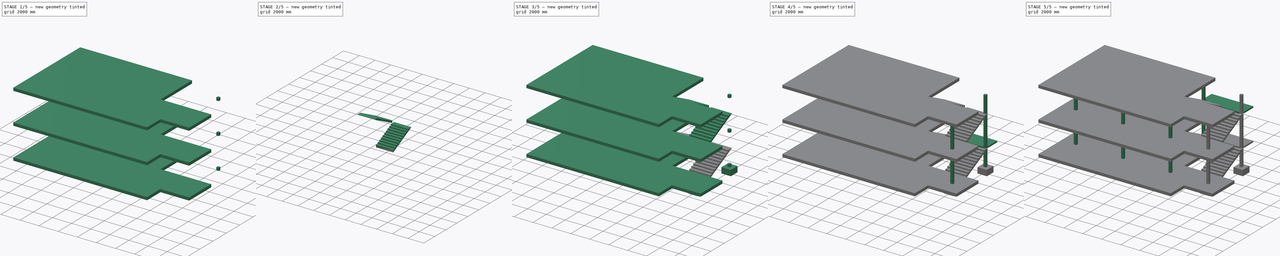
[diagram: build sequence overview — one tinted view per stage of 5, left to right]
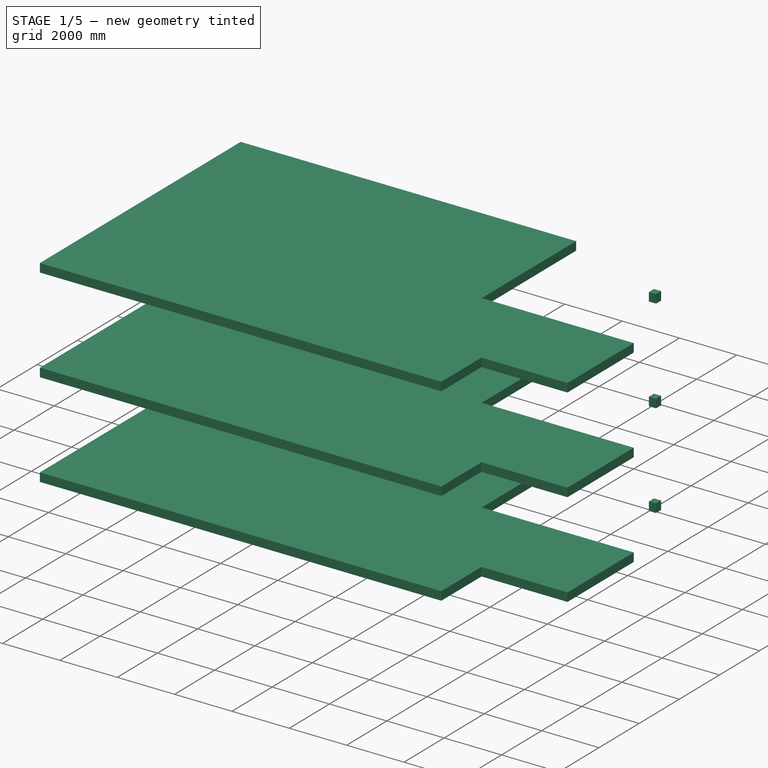
[diagram: stage 1 of 5 — iso view after this stage's code; geometry added in this stage tinted green]
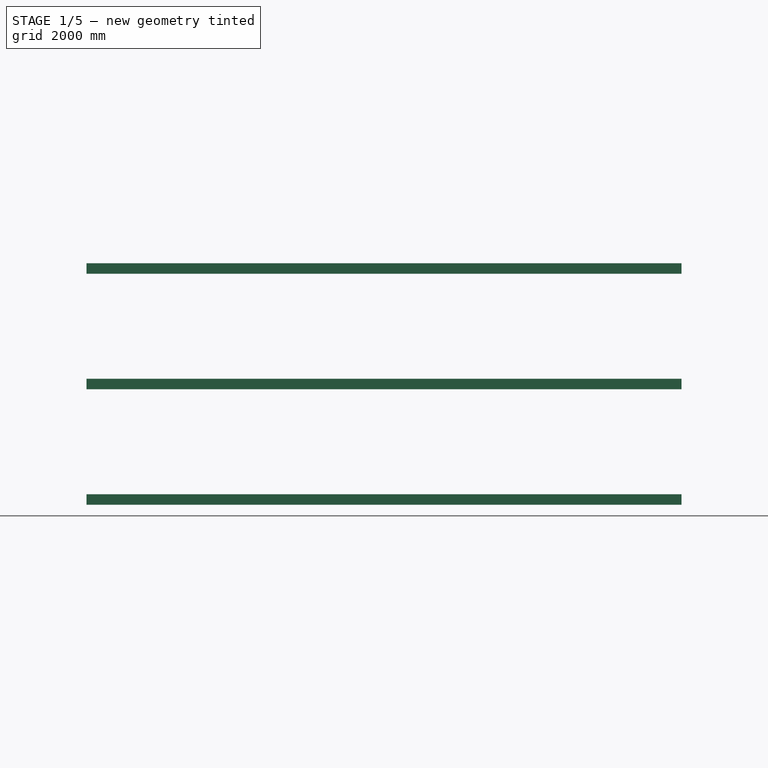
[diagram: stage 1 of 5 — front view after this stage's code; geometry added in this stage tinted green]
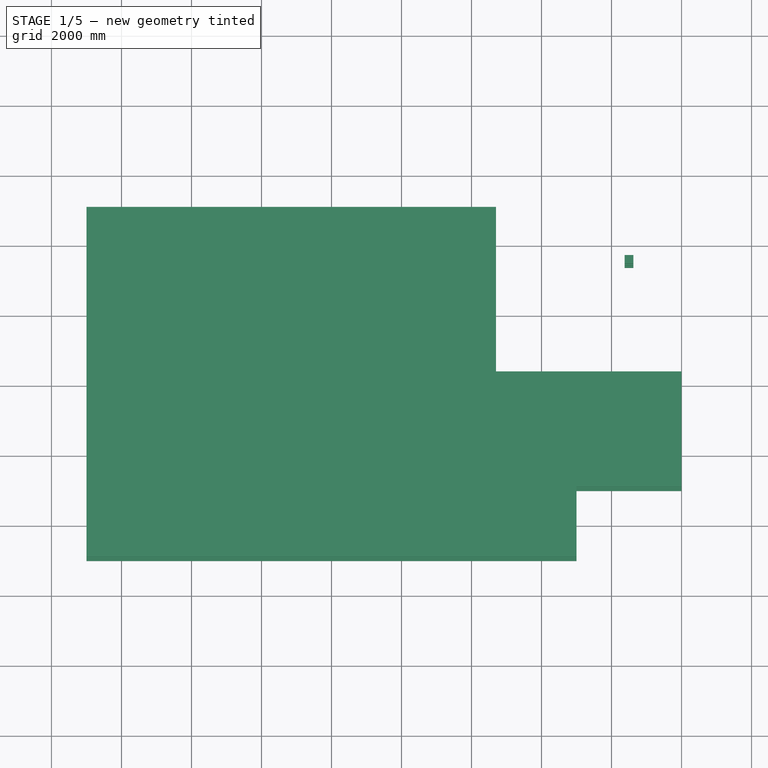
[diagram: stage 1 of 5 — top view after this stage's code; geometry added in this stage tinted green]
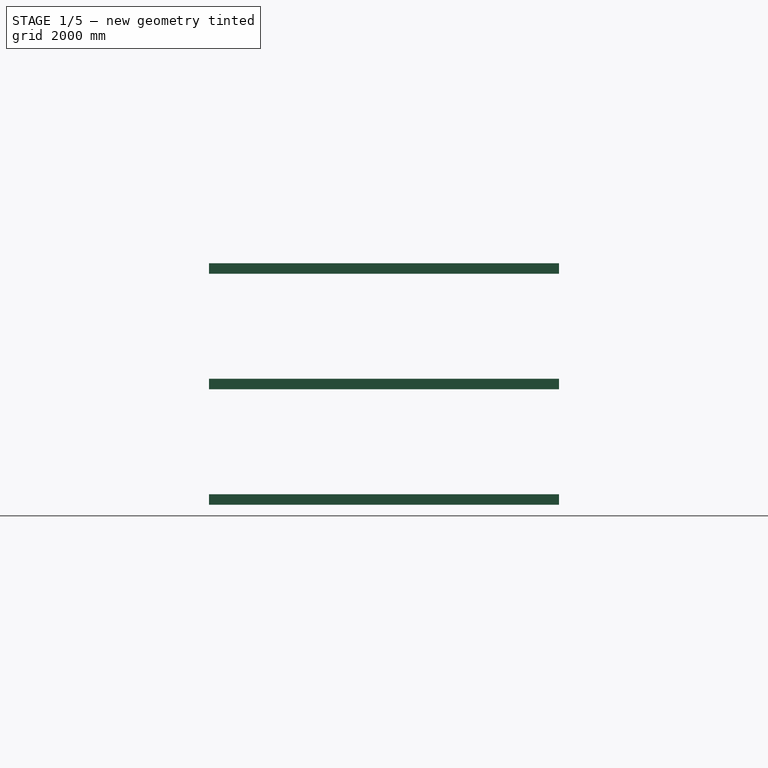
[diagram: stage 1 of 5 — right view after this stage's code; geometry added in this stage tinted green]
FCSTD DOCUMENT  (FreeCAD 0.16R6712 (Git))
Label: DOMINO-HOUSE
License: All rights reserved
LicenseURL: http://en.wikipedia.org/wiki/All_rights_reserved
objects: Part::FeaturePython×10, Sketcher::SketchObject×8, Part::Extrusion×8, Part::MultiFuse×4, Part::Part2DObjectPython×1
note: 31 computed .brp shape members not serialized (recipe doc carries the construction recipe); baked Part::Feature solids carry a one-line shape summary decoded from their .brp

FEATURE [Sketcher::SketchObject] Sketch  label="FUND"
  sketch-geometry (4):
    g0: LineSegment StartX=0 StartY=0 StartZ=0 EndX=1000 EndY=0 EndZ=0
    g1: LineSegment StartX=1000 StartY=0 StartZ=0 EndX=1000 EndY=1000 EndZ=0
    g2: LineSegment StartX=1000 StartY=1000 StartZ=0 EndX=0 EndY=1000 EndZ=0
    g3: LineSegment StartX=0 StartY=1000 StartZ=0 EndX=0 EndY=0 EndZ=0
  constraints (11):
    c: Coincident(g0,g1)
    c: Coincident(g1,g2)
    c: Coincident(g2,g3)
    c: Coincident(g3,g0)
    c: Horizontal(g0)
    c: Horizontal(g2)
    c: Vertical(g1)
    c: Vertical(g3)
    c: Coincident(g0,g-1)
    c: DistanceX(g0,g0) = 1000
    c: Equal(g3,g0)
FEATURE [Part::Extrusion] Extrude_Sketch  label="FUND001"
  Base = -> Sketch
  Dir = (0,0,600)
  Solid = true
FEATURE [Part::FeaturePython] Array  # Draft array (typed FeaturePython)
  Angle = 360
  ArrayType = 0
  Axis = (0,0,1)
  Base = -> Extrude_Sketch
  Center = (0,0,0)
  Fuse = false
  IntervalAxis = (0,0,0)
  IntervalX = (5000,0,0)
  IntervalY = (0,5000,0)
  IntervalZ = (0,0,0)
  NumberPolar = 1
  NumberX = 3
  NumberY = 2
  NumberZ = 1
FEATURE [Sketcher::SketchObject] Sketch002  label="LAJE"
  Placement = pos=(0,0,600) rot=(0,0,1;0rad)
  Support = -> Array [Face6]
  sketch-geometry (12):
    g0: LineSegment StartX=-1000 StartY=-3000 StartZ=0 EndX=13000 EndY=-3000 EndZ=0
    g1: LineSegment StartX=16000 StartY=-1000 StartZ=0 EndX=16000 EndY=2300 EndZ=0
    g2: LineSegment StartX=10700 StartY=7000 StartZ=0 EndX=-1000 EndY=7000 EndZ=0
    g3: LineSegment StartX=-1000 StartY=7000 StartZ=0 EndX=-1000 EndY=-3000 EndZ=0
    g4: LineSegment StartX=16000 StartY=2300 StartZ=0 EndX=10700 EndY=2300 EndZ=0
    g5: LineSegment StartX=10700 StartY=2300 StartZ=0 EndX=10700 EndY=7000 EndZ=0
    g6: LineSegment StartX=13000 StartY=-1000 StartZ=0 EndX=16000 EndY=-1000 EndZ=0
    g7: LineSegment StartX=13000 StartY=-3000 StartZ=0 EndX=13000 EndY=-1000 EndZ=0
    g8: LineSegment StartX=14375 StartY=5625 StartZ=0 EndX=14625 EndY=5625 EndZ=0
    g9: LineSegment StartX=14625 StartY=5625 StartZ=0 EndX=14625 EndY=5375 EndZ=0
    g10: LineSegment StartX=14625 StartY=5375 StartZ=0 EndX=14375 EndY=5375 EndZ=0
    g11: LineSegment StartX=14375 StartY=5375 StartZ=0 EndX=14375 EndY=5625 EndZ=0
  constraints (24):
    c: Coincident(g2,g3)
    c: Coincident(g3,g0)
    c: Horizontal(g0)
    c: Horizontal(g2)
    c: Vertical(g1)
    c: Vertical(g3)
    c: Coincident(g4,g5)
    c: Horizontal(g4)
    c: Vertical(g5)
    c: Coincident(g5,g2)
    c: Coincident(g4,g1)
    c: Coincident(g7,g6)
    c: Horizontal(g6)
    c: Vertical(g7)
    c: Coincident(g1,g6)
    c: Coincident(g7,g0)
    c: Coincident(g8,g9)
    c: Coincident(g9,g10)
    c: Coincident(g10,g11)
    c: Coincident(g11,g8)
    c: Horizontal(g8)
    c: Horizontal(g10)
    c: Vertical(g9)
    c: Vertical(g11)
FEATURE [Part::Extrusion] Extrude_Sketch002001  label="LAJE_Extrude"
  Base = -> Sketch002
  Dir = (0,0,300)
  Solid = true
FEATURE [Part::FeaturePython] Array004  # Draft array (typed FeaturePython)
  Angle = 360
  ArrayType = 0
  Axis = (0,0,1)
  Base = -> Extrude_Sketch002001
  Center = (0,0,0)
  Fuse = false
  IntervalAxis = (0,0,0)
  IntervalX = (1,0,0)
  IntervalY = (0,1,0)
  IntervalZ = (0,0,3300)
  NumberPolar = 1
  NumberX = 1
  NumberY = 1
  NumberZ = 3
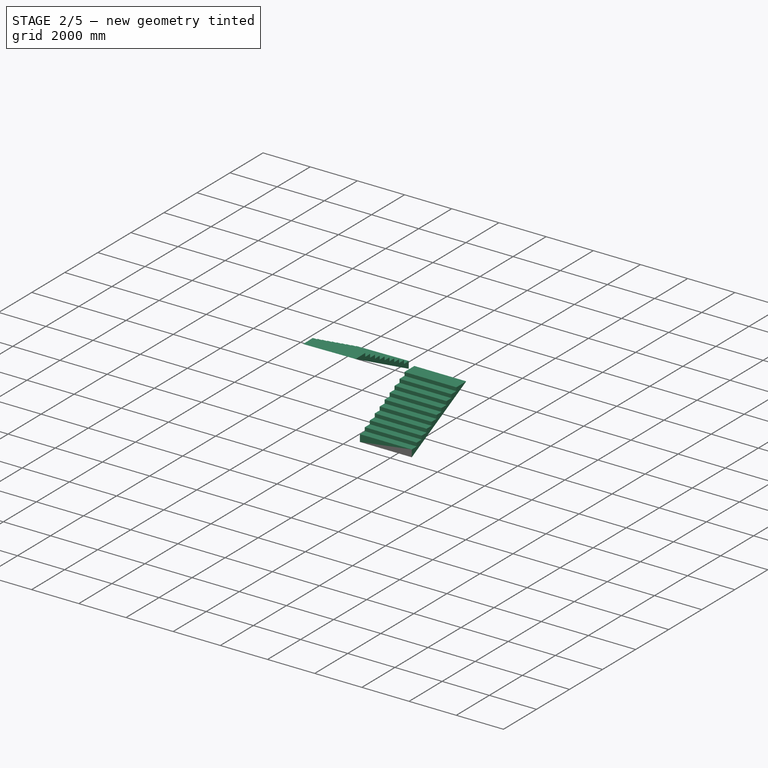
[diagram: stage 2 of 5 — iso view after this stage's code; geometry added in this stage tinted green]
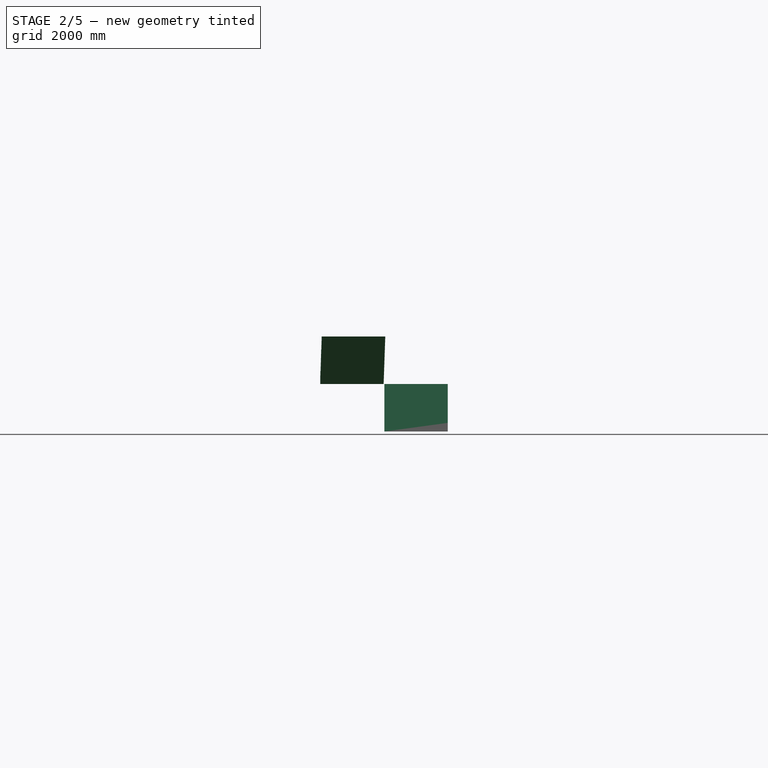
[diagram: stage 2 of 5 — front view after this stage's code; geometry added in this stage tinted green]
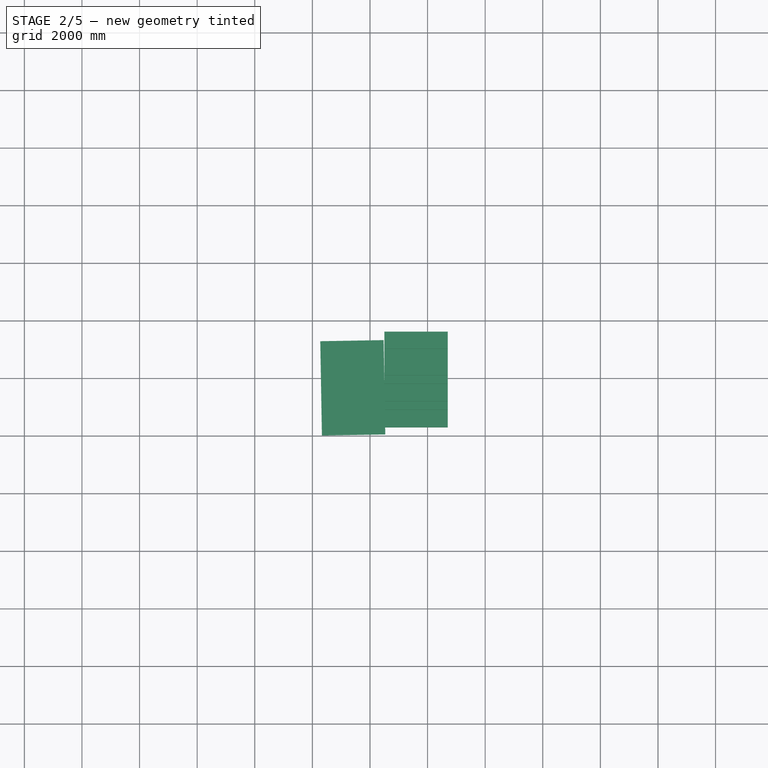
[diagram: stage 2 of 5 — top view after this stage's code; geometry added in this stage tinted green]
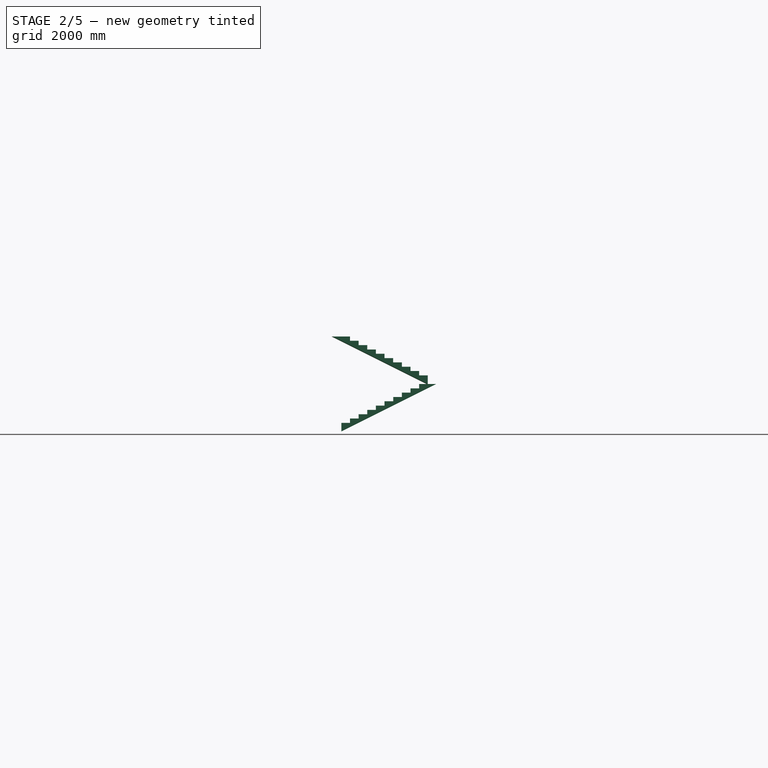
[diagram: stage 2 of 5 — right view after this stage's code; geometry added in this stage tinted green]
FEATURE [Sketcher::SketchObject] Sketch003
  Placement = pos=(0,0,900) rot=(0,0,1;0rad)
  Support = -> Array004 [Face10]
  sketch-geometry (6):
    g0: LineSegment [constr] StartX=14700 StartY=2300 StartZ=0 EndX=14700 EndY=5300 EndZ=0
    g1: LineSegment StartX=12500 StartY=2600 StartZ=0 EndX=14700 EndY=2600 EndZ=0
    g2: LineSegment StartX=14700 StartY=2600 StartZ=0 EndX=14700 EndY=2300 EndZ=0
    g3: LineSegment StartX=14700 StartY=2300 StartZ=0 EndX=12500 EndY=2300 EndZ=0
    g4: LineSegment StartX=12500 StartY=2300 StartZ=0 EndX=12500 EndY=2600 EndZ=0
    g5: LineSegment [constr] StartX=12500 StartY=2300 StartZ=0 EndX=12500 EndY=5300 EndZ=0
  constraints (12):
    c: Vertical(g0)
    c: Coincident(g1,g2)
    c: Coincident(g2,g3)
    c: Coincident(g3,g4)
    c: Coincident(g4,g1)
    c: Horizontal(g1)
    c: Horizontal(g3)
    c: Vertical(g2)
    c: Vertical(g4)
    c: Vertical(g5)
    c: Coincident(g0,g2)
    c: Coincident(g3,g5)
FEATURE [Part::Extrusion] Extrude_Sketch003001  label="Sketch003_Extrude"
  Base = -> Sketch003
  Dir = (0,0,150)
  Solid = true
FEATURE [Part::FeaturePython] Array005  # Draft array (typed FeaturePython)
  Angle = 360
  ArrayType = 0
  Axis = (0,0,1)
  Base = -> Extrude_Sketch003001
  Center = (0,0,0)
  Fuse = true
  IntervalAxis = (0,0,0)
  IntervalX = (1,0,0)
  IntervalY = (0,300,150)
  IntervalZ = (0,0,0)
  NumberPolar = 1
  NumberX = 1
  NumberY = 10
  NumberZ = 1
FEATURE [Sketcher::SketchObject] Sketch007
  Placement = pos=(14700,0,0) rot=(0.57735,0.57735,0.57735;2.0944rad)
  Support = -> Array005 [Face33]
  sketch-geometry (4):
    g0: LineSegment StartX=2000 StartY=900 StartZ=0 EndX=5600 EndY=2700 EndZ=0
    g1: LineSegment StartX=5600 StartY=2700 StartZ=0 EndX=5900 EndY=2700 EndZ=0
    g2: LineSegment StartX=5900 StartY=2700 StartZ=0 EndX=2300 EndY=900 EndZ=0
    g3: LineSegment StartX=2300 StartY=900 StartZ=0 EndX=2000 EndY=900 EndZ=0
  constraints (6):
    c: Coincident(g0,g1)
    c: Horizontal(g1)
    c: Coincident(g1,g2)
    c: Coincident(g2,g3)
    c: Coincident(g3,g0)
    c: Horizontal(g3)
FEATURE [Sketcher::SketchObject] Sketch008
  Placement = pos=(0,0,1200) rot=(1,0,0;3.14159rad)
  Support = -> Array005 [Face21]
  sketch-geometry (4):
    g0: LineSegment StartX=2300 StartY=900 StartZ=0 EndX=5600 EndY=2550 EndZ=0
    g1: LineSegment StartX=5600 StartY=2550 StartZ=0 EndX=5600 EndY=2400 EndZ=0
    g2: LineSegment StartX=5600 StartY=2400 StartZ=0 EndX=2300 EndY=750 EndZ=0
    g3: LineSegment StartX=2300 StartY=750 StartZ=0 EndX=2300 EndY=900 EndZ=0
  constraints (6):
    c: Coincident(g0,g1)
    c: Vertical(g1)
    c: Coincident(g1,g2)
    c: Coincident(g2,g3)
    c: Coincident(g3,g0)
    c: Vertical(g3)
FEATURE [Sketcher::SketchObject] Sketch009
  Placement = pos=(0,0,1650) rot=(1,0,0;3.14159rad)
  Support = -> Array005 [Face15]
  sketch-geometry (4):
    g0: LineSegment StartX=2300 StartY=900 StartZ=0 EndX=2300 EndY=750 EndZ=0
    g1: LineSegment StartX=2300 StartY=750 StartZ=0 EndX=5600 EndY=2400 EndZ=0
    g2: LineSegment StartX=5600 StartY=2400 StartZ=0 EndX=5300 EndY=2400 EndZ=0
    g3: LineSegment StartX=5300 StartY=2400 StartZ=0 EndX=2300 EndY=900 EndZ=0
  constraints (6):
    c: Vertical(g0)
    c: Coincident(g0,g1)
    c: Coincident(g1,g2)
    c: Horizontal(g2)
    c: Coincident(g2,g3)
    c: Coincident(g3,g0)
FEATURE [Part::Extrusion] Extrude_Sketch009  label="Sketch009_Extrude"
  Base = -> Sketch009
  Dir = (-2200,0,0)
  Solid = true
FEATURE [Part::MultiFuse] Fusion
  Shapes = -> [Array005,Extrude_Sketch009]
FEATURE [Part::Part2DObjectPython] Line  # Draft 2D object (typed FeaturePython)
  ChamferSize = 0
  Closed = false
  End = (12500,5300,0)
  FilletRadius = 0
  Length = 3000
  MakeFace = true
  Points = (2) [(12500,2300,0),(12500,5300,0)]
  Start = (12500,2300,0)
  Subdivisions = 0
  Support = -> Fusion
FEATURE [Part::FeaturePython] Point  # WARN: FeaturePython — macro-defined, semantics opaque (R4)
  X = 12500
  Y = 3800
  Z = 0
FEATURE [Part::FeaturePython] Array006  # Draft array (typed FeaturePython)
  Angle = 181
  ArrayType = 1
  Axis = (0,0,1)
  Base = -> Fusion
  Center = (12500,3800,0)
  Fuse = true
  IntervalAxis = (0,0,1650)
  IntervalX = (1,0,0)
  IntervalY = (0,1,0)
  IntervalZ = (0,0,0)
  NumberPolar = 2
  NumberX = 2
  NumberY = 2
  NumberZ = 1
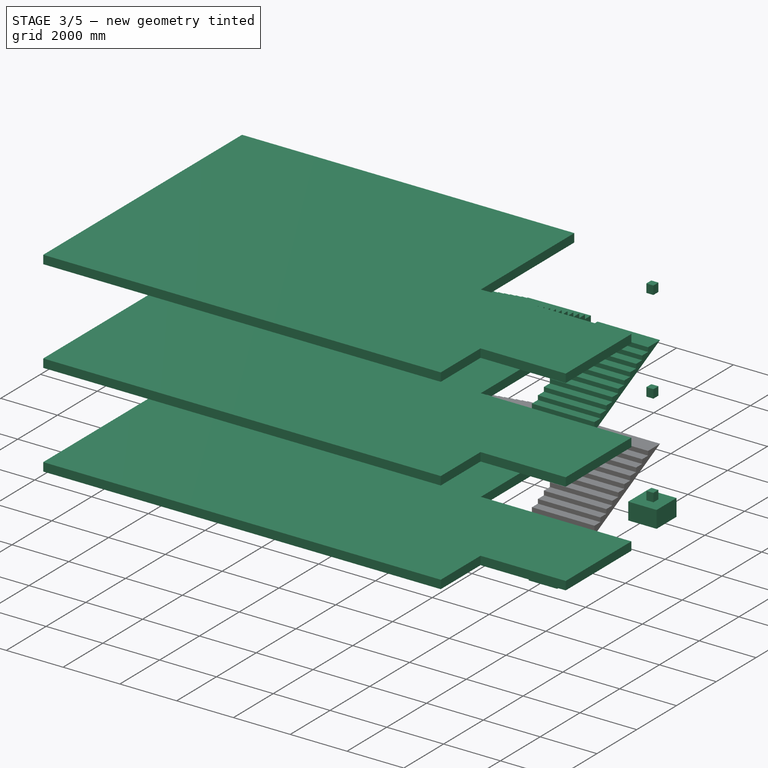
[diagram: stage 3 of 5 — iso view after this stage's code; geometry added in this stage tinted green]
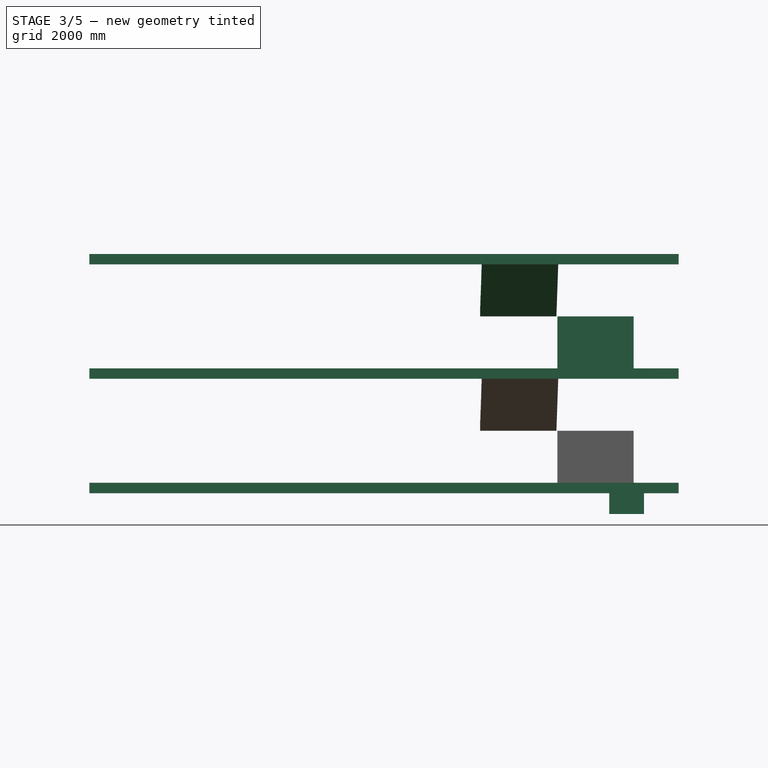
[diagram: stage 3 of 5 — front view after this stage's code; geometry added in this stage tinted green]
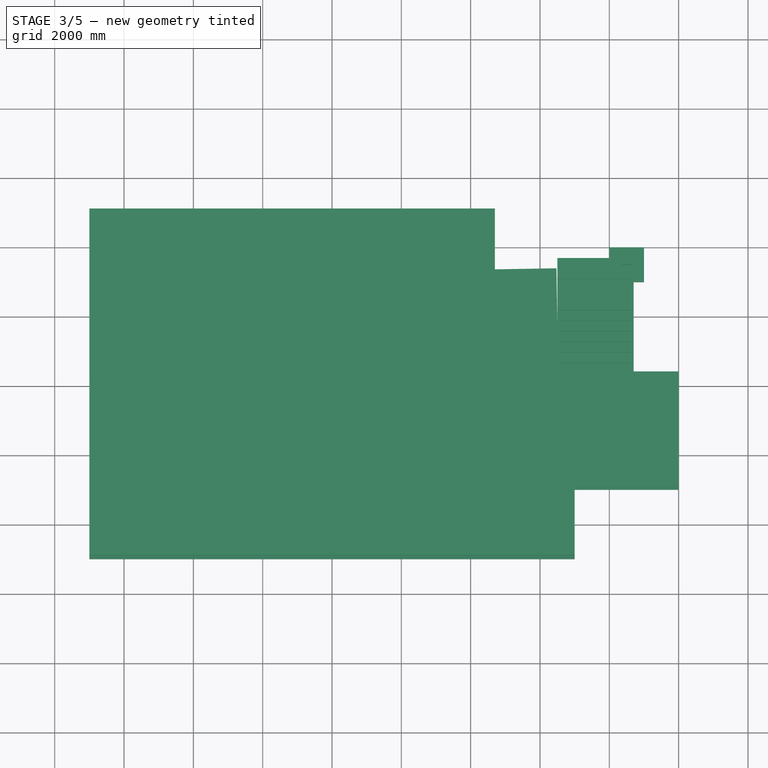
[diagram: stage 3 of 5 — top view after this stage's code; geometry added in this stage tinted green]
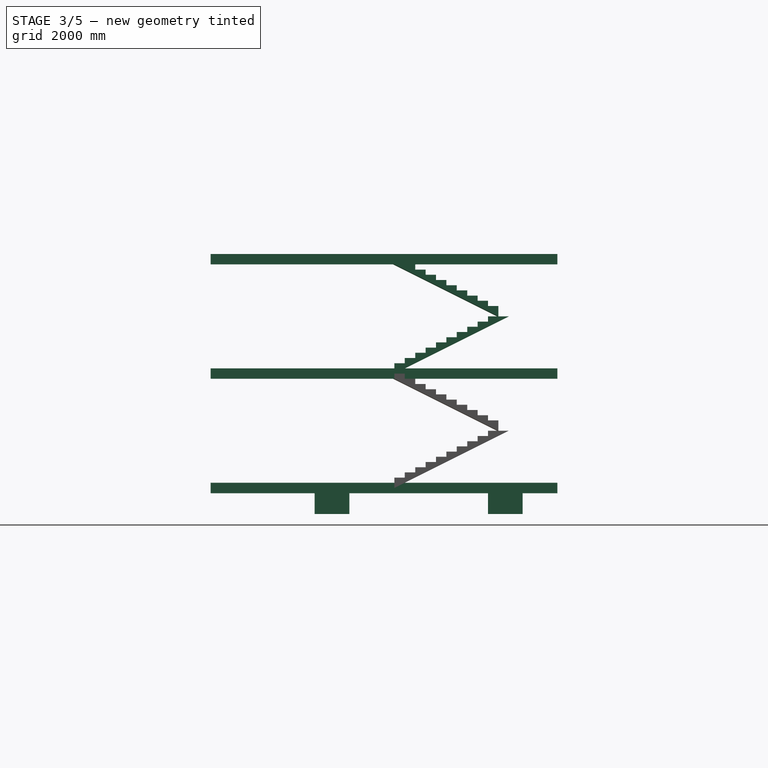
[diagram: stage 3 of 5 — right view after this stage's code; geometry added in this stage tinted green]
FEATURE [Part::Extrusion] Extrude_Sketch003  label="FUND002"
  Base = -> Sketch
  Dir = (0,0,600)
  Placement = pos=(14000,0,0) rot=(0,0,1;0rad)
  Solid = true
FEATURE [Part::FeaturePython] Array003  # Draft array (typed FeaturePython)
  Angle = 360
  ArrayType = 0
  Axis = (0,0,1)
  Base = -> Extrude_Sketch003
  Center = (0,0,0)
  Fuse = true
  IntervalAxis = (0,0,0)
  IntervalX = (1,0,0)
  IntervalY = (0,5000,0)
  IntervalZ = (0,0,0)
  NumberPolar = 1
  NumberX = 1
  NumberY = 2
  NumberZ = 1
FEATURE [Part::FeaturePython] Array007  # Draft array (typed FeaturePython)
  Angle = 360
  ArrayType = 0
  Axis = (0,0,1)
  Base = -> Array006
  Center = (0,0,0)
  Fuse = true
  IntervalAxis = (0,0,0)
  IntervalX = (1,0,0)
  IntervalY = (0,1,0)
  IntervalZ = (0,0,3300)
  NumberPolar = 1
  NumberX = 1
  NumberY = 1
  NumberZ = 2
FEATURE [Part::MultiFuse] Fusion001
  Shapes = -> [Array007,Array004,Array003]
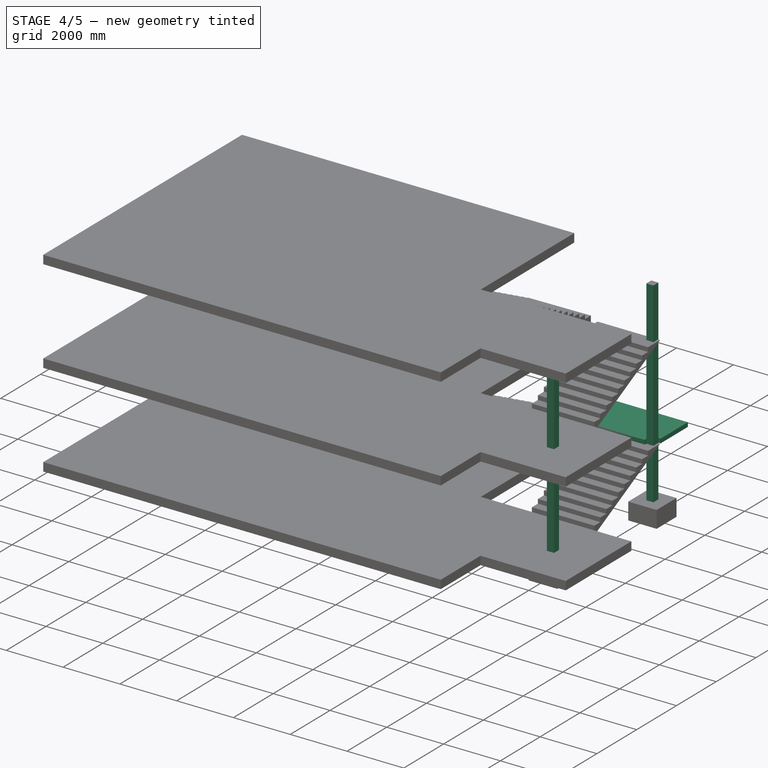
[diagram: stage 4 of 5 — iso view after this stage's code; geometry added in this stage tinted green]
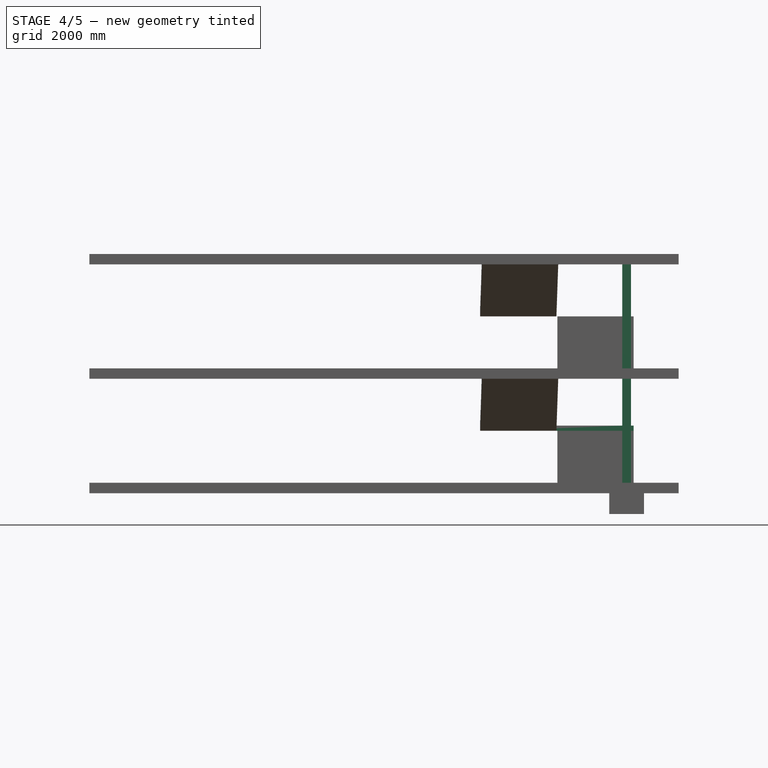
[diagram: stage 4 of 5 — front view after this stage's code; geometry added in this stage tinted green]
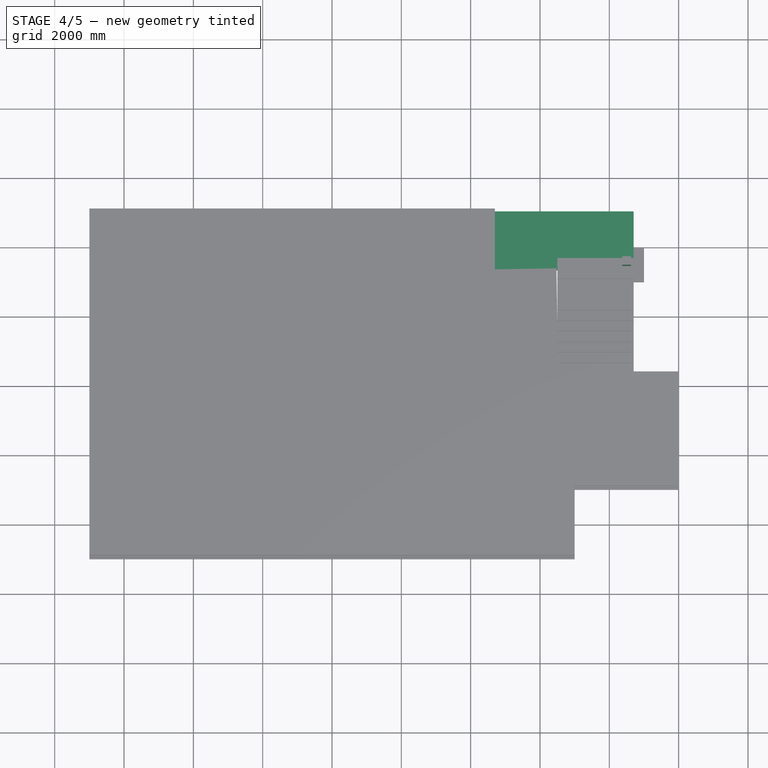
[diagram: stage 4 of 5 — top view after this stage's code; geometry added in this stage tinted green]
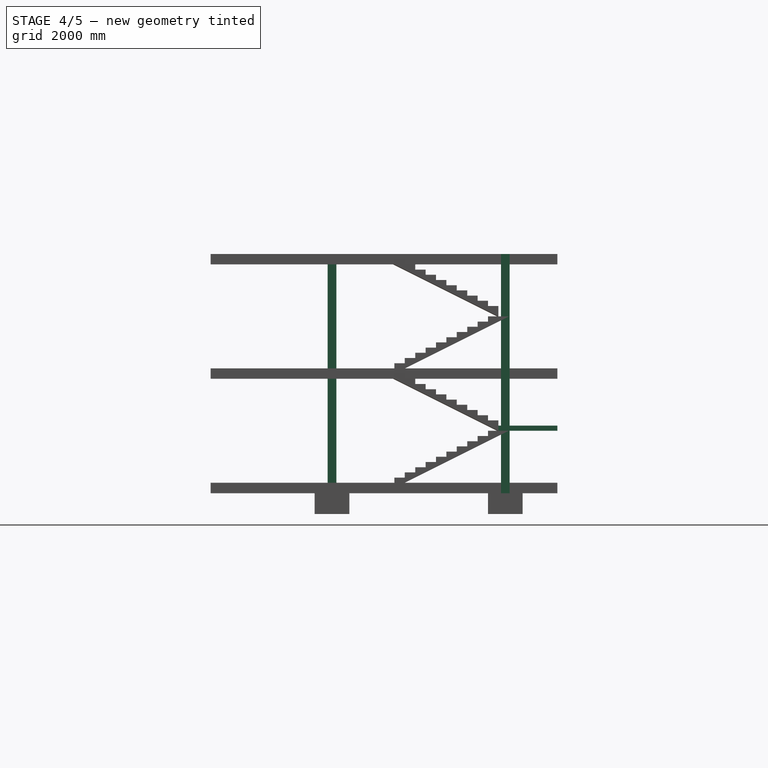
[diagram: stage 4 of 5 — right view after this stage's code; geometry added in this stage tinted green]
FEATURE [Part::Extrusion] Extrude_Sketch002  label="PILAR_Extrude001"
  Base = -> Sketch001
  Dir = (0,0,3000)
  Placement = pos=(14000,0,300) rot=(0,0,1;0rad)
  Solid = true
FEATURE [Part::FeaturePython] Array002  # Draft array (typed FeaturePython)
  Angle = 360
  ArrayType = 0
  Axis = (0,0,1)
  Base = -> Extrude_Sketch002
  Center = (0,0,0)
  Fuse = false
  IntervalAxis = (0,0,0)
  IntervalX = (1,0,0)
  IntervalY = (0,5000,0)
  IntervalZ = (0,0,3300)
  NumberPolar = 1
  NumberX = 1
  NumberY = 2
  NumberZ = 2
FEATURE [Sketcher::SketchObject] Sketch006
  Placement = pos=(0,0,2400) rot=(0,0,1;0rad)
  Support = -> Array005 [Face5]
  sketch-geometry (8):
    g0: LineSegment StartX=14375 StartY=5300 StartZ=0 EndX=10700 EndY=5300 EndZ=0
    g1: LineSegment StartX=10300 StartY=5700 StartZ=0 EndX=10300 EndY=7000 EndZ=0
    g2: LineSegment StartX=10300 StartY=7000 StartZ=0 EndX=14700 EndY=7000 EndZ=0
    g3: LineSegment StartX=14700 StartY=7000 StartZ=0 EndX=14700 EndY=5625 EndZ=0
    g4: LineSegment StartX=10700 StartY=5700 StartZ=0 EndX=10300 EndY=5700 EndZ=0
    g5: LineSegment StartX=10700 StartY=5300 StartZ=0 EndX=10700 EndY=5700 EndZ=0
    g6: LineSegment StartX=14375 StartY=5625 StartZ=0 EndX=14700 EndY=5625 EndZ=0
    g7: LineSegment StartX=14375 StartY=5300 StartZ=0 EndX=14375 EndY=5625 EndZ=0
  constraints (16):
    c: Coincident(g1,g2)
    c: Coincident(g2,g3)
    c: Horizontal(g0)
    c: Horizontal(g2)
    c: Vertical(g1)
    c: Vertical(g3)
    c: Coincident(g5,g4)
    c: Horizontal(g4)
    c: Vertical(g5)
    c: Coincident(g7,g6)
    c: Horizontal(g6)
    c: Vertical(g7)
    c: PointOnObject(g1,g4)
    c: PointOnObject(g0,g5)
    c: PointOnObject(g0,g7)
    c: PointOnObject(g3,g6)
FEATURE [Part::Extrusion] Extrude_Sketch006  label="Sketch006_Extrude"
  Base = -> Sketch006
  Dir = (0,0,150)
  Solid = true
FEATURE [Part::MultiFuse] Fusion002
  Shapes = -> [Array002,Fusion001]
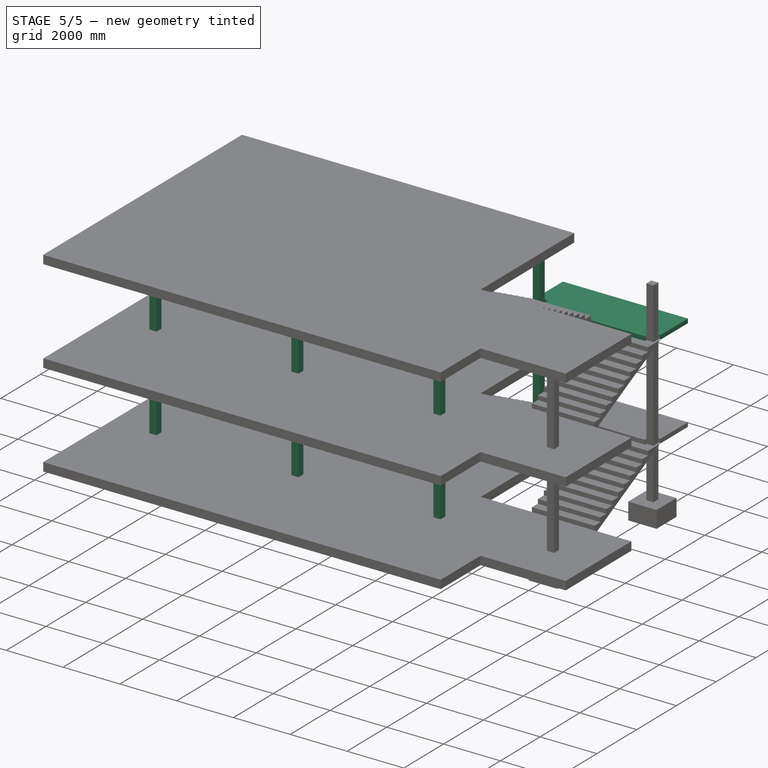
[diagram: stage 5 of 5 — iso view after this stage's code; geometry added in this stage tinted green]
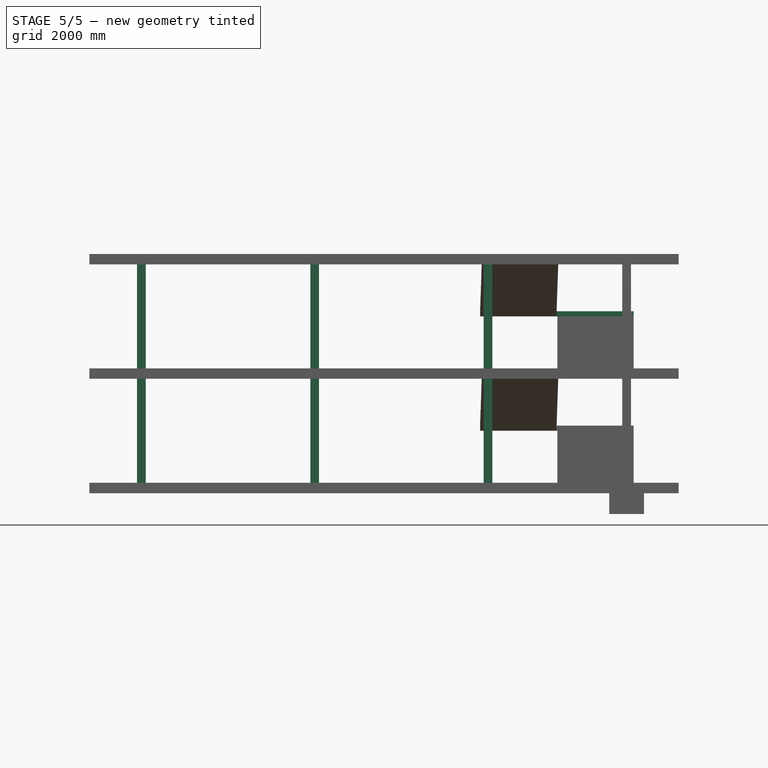
[diagram: stage 5 of 5 — front view after this stage's code; geometry added in this stage tinted green]
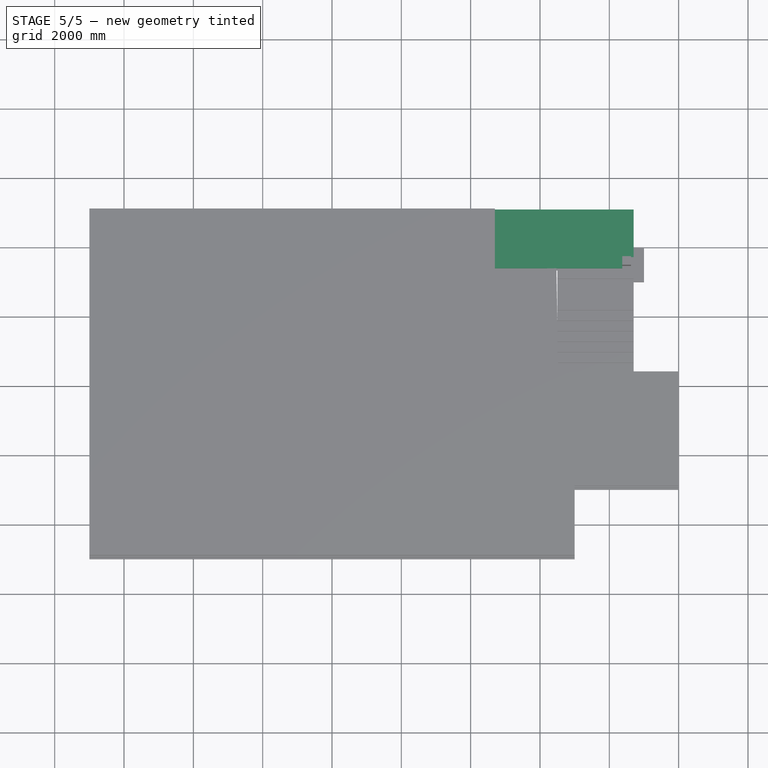
[diagram: stage 5 of 5 — top view after this stage's code; geometry added in this stage tinted green]
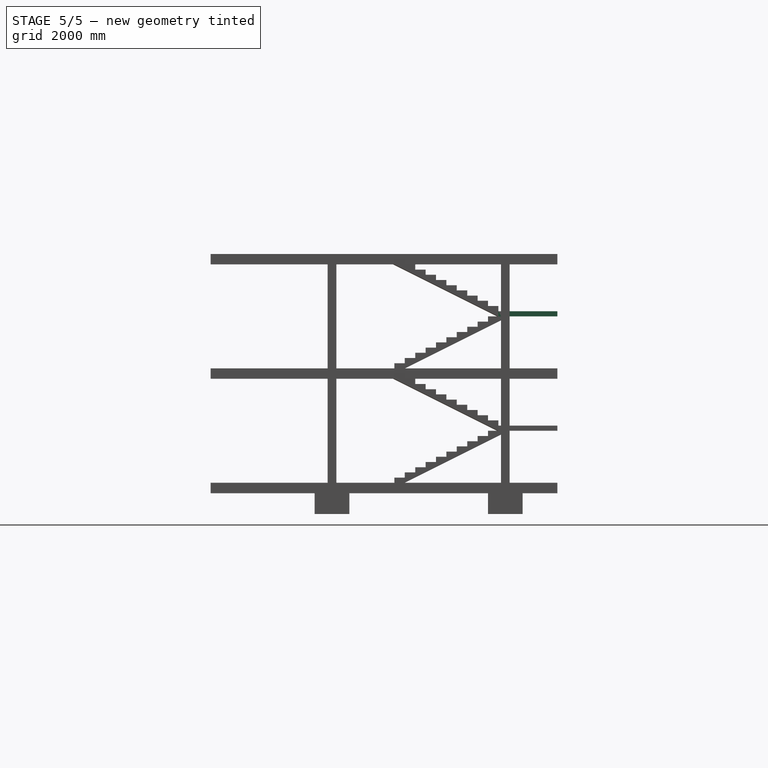
[diagram: stage 5 of 5 — right view after this stage's code; geometry added in this stage tinted green]
FEATURE [Sketcher::SketchObject] Sketch001  label="PILAR"
  ExternalGeometry = -> [Extrude_Sketch]
  Placement = pos=(0,0,600) rot=(0,0,1;0rad)
  Support = -> Extrude_Sketch [Face6]
  sketch-geometry (6):
    g0: LineSegment StartX=375 StartY=625 StartZ=0 EndX=625 EndY=625 EndZ=0
    g1: LineSegment StartX=625 StartY=625 StartZ=0 EndX=625 EndY=375 EndZ=0
    g2: LineSegment StartX=625 StartY=375 StartZ=0 EndX=375 EndY=375 EndZ=0
    g3: LineSegment StartX=375 StartY=375 StartZ=0 EndX=375 EndY=625 EndZ=0
    g4: Circle [constr] CenterX=500 CenterY=500 CenterZ=0 NormalX=0 NormalY=0 NormalZ=1 Radius=125
    g5: Circle [constr] CenterX=500 CenterY=500 CenterZ=0 NormalX=0 NormalY=0 NormalZ=1 Radius=500
  constraints (17):
    c: Coincident(g0,g1)
    c: Coincident(g1,g2)
    c: Coincident(g2,g3)
    c: Coincident(g3,g0)
    c: Horizontal(g0)
    c: Horizontal(g2)
    c: Vertical(g1)
    c: Vertical(g3)
    c: Equal(g0,g3)
    c: Tangent(g4,g0)
    c: Tangent(g4,g3)
    c: Tangent(g4,g2)
    c: Distance(g2) = 250
    c: Coincident(g4,g5)
    c: Tangent(g5,g-3)
    c: Tangent(g5,g-4)
    c: Tangent(g5,g-5)
FEATURE [Part::Extrusion] Extrude_Sketch001  label="PILAR_Extrude"
  Base = -> Sketch001
  Dir = (0,0,3000)
  Placement = pos=(0,0,300) rot=(0,0,1;0rad)
  Solid = true
FEATURE [Part::FeaturePython] Array001  # Draft array (typed FeaturePython)
  Angle = 360
  ArrayType = 0
  Axis = (0,0,1)
  Base = -> Extrude_Sketch001
  Center = (0,0,0)
  Fuse = false
  IntervalAxis = (0,0,0)
  IntervalX = (5000,0,0)
  IntervalY = (0,5000,0)
  IntervalZ = (0,0,3300)
  NumberPolar = 1
  NumberX = 3
  NumberY = 2
  NumberZ = 2
FEATURE [Part::FeaturePython] Array008  # Draft array (typed FeaturePython)
  Angle = 360
  ArrayType = 0
  Axis = (0,0,1)
  Base = -> Extrude_Sketch006
  Center = (0,0,0)
  Fuse = false
  IntervalAxis = (0,0,0)
  IntervalX = (1,0,0)
  IntervalY = (0,1,0)
  IntervalZ = (0,0,3300)
  NumberPolar = 1
  NumberX = 1
  NumberY = 1
  NumberZ = 2
FEATURE [Part::MultiFuse] Fusion003
  Shapes = -> [Fusion002,Array008]
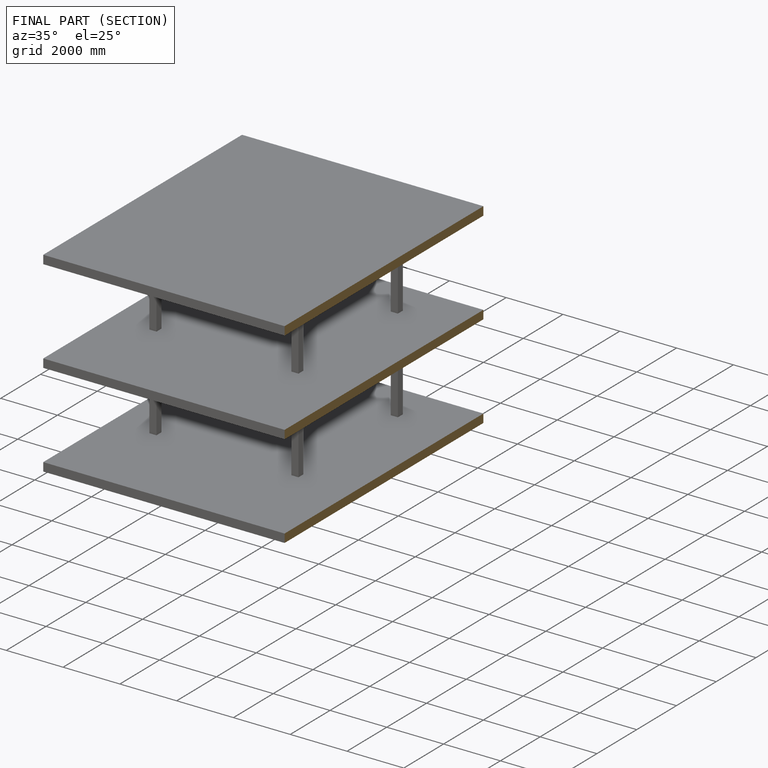
[diagram: finished part — half-section view (interior)]
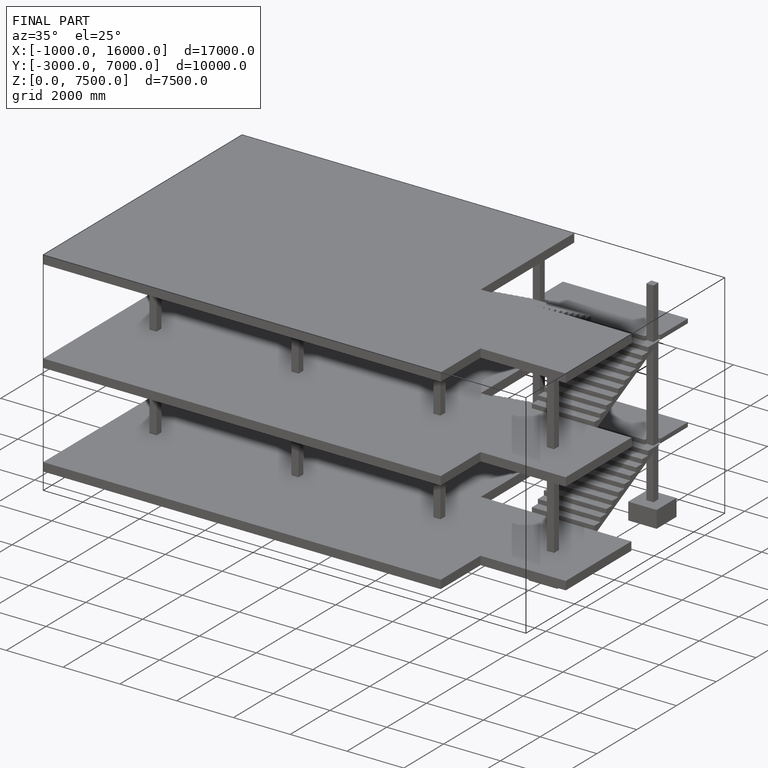
[diagram: finished part — iso view with bounding-box wireframe]
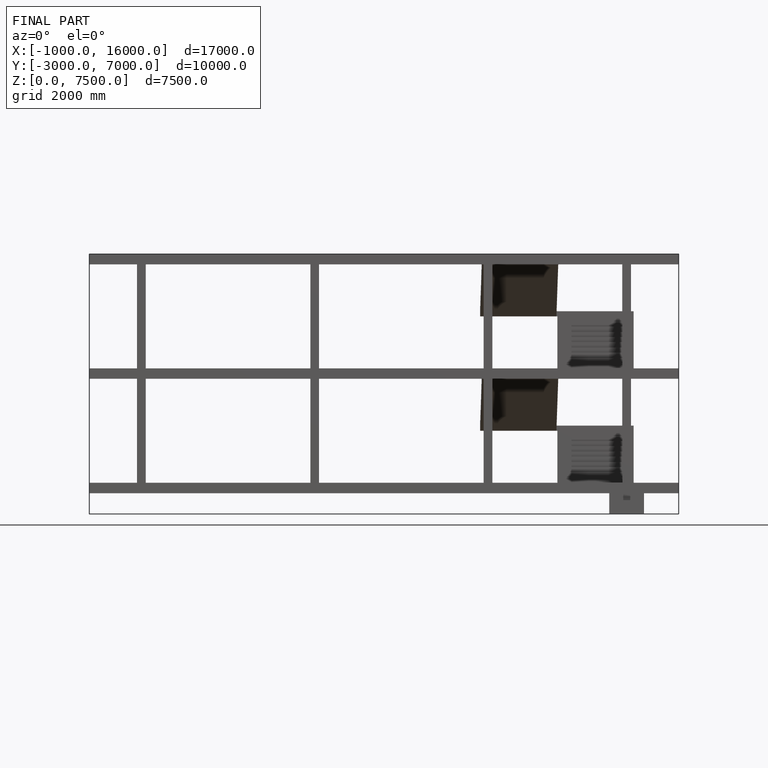
[diagram: finished part — front view with bounding-box wireframe]
